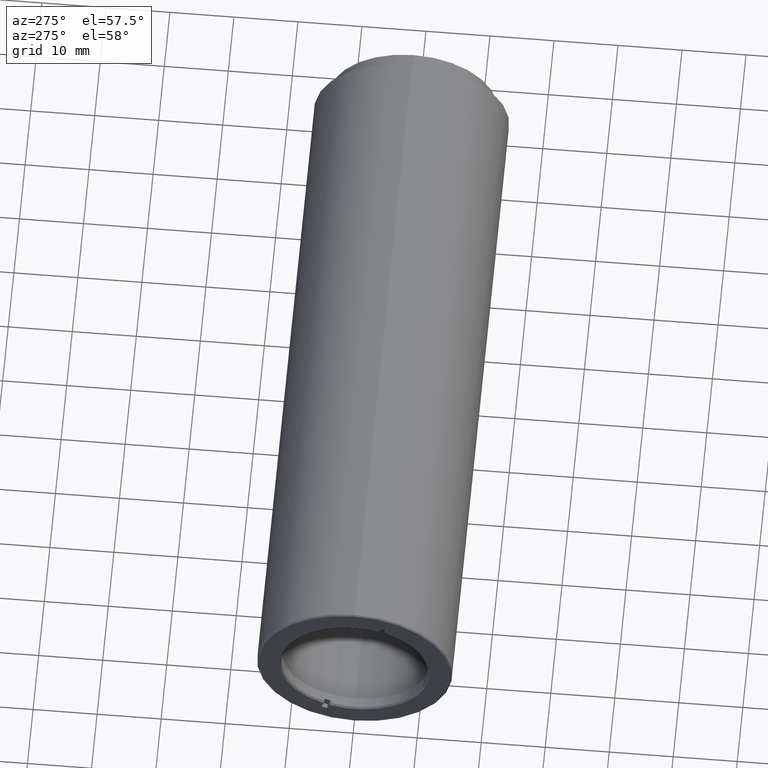
[diagram: clean part render]
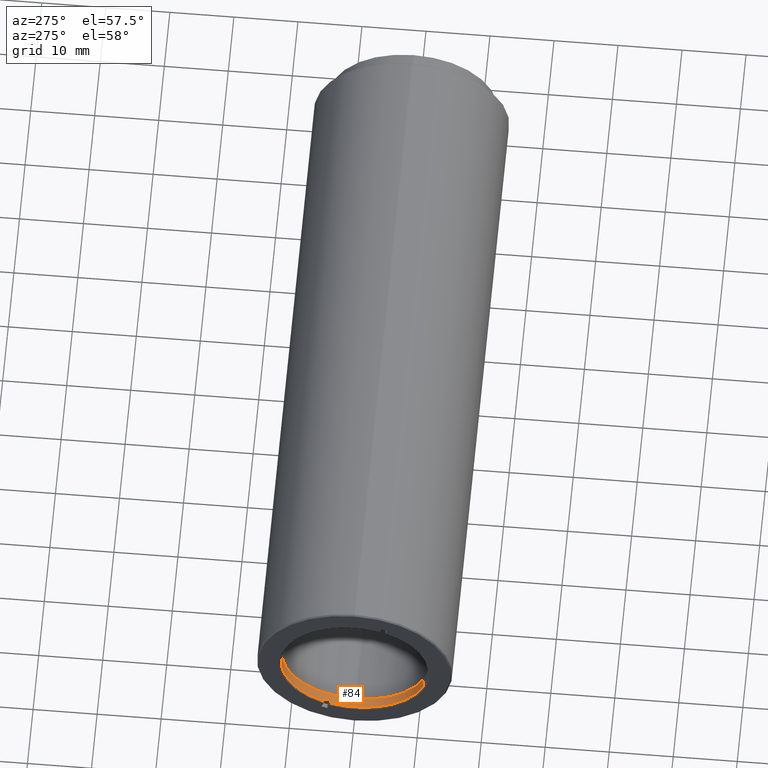
[diagram: same view with one face highlighted and labeled with its STEP entity id]
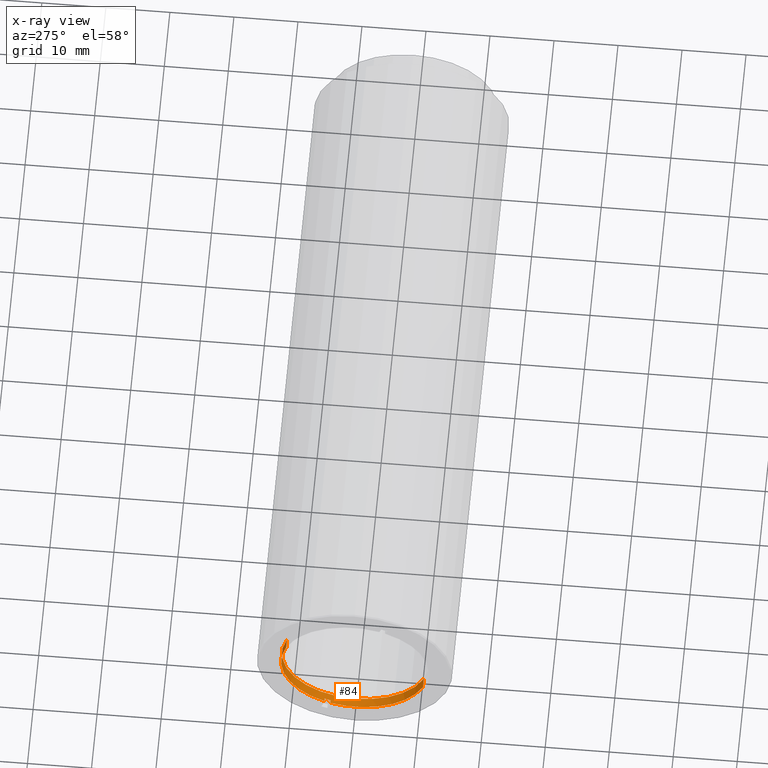
[diagram: x-ray of the same camera — body ghosted, the highlighted face saturated]
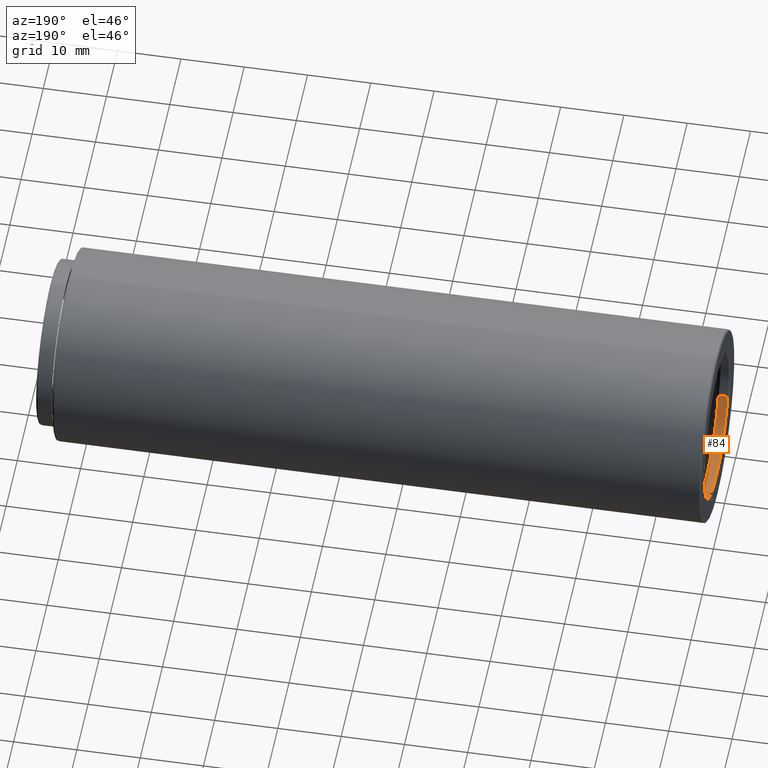
[diagram: same view with one face highlighted and labeled with its STEP entity id]
A machine part, auxiliary view. The second image highlights one B-rep face of the part: STEP entity #84.
The next image is the same camera in x-ray: the body ghosted, the highlighted face saturated — about 0% of this face is hidden behind the body in this view.
A second angle (auxiliary view) of the same face is appended — the face is thin or edge-on in the first view.
In plain terms, the highlighted cylindrical surface (partial cylindrical patch) has radius 11.5045 mm, axis along (1, 0, 0).
Its self-contained STEP definition (entity closure, byte-faithful):
#17 = DIRECTION ( 'NONE',  ( -1.000000000000000000, -2.105809034732734607E-31, -4.356099237842320700E-33 ) ) ;
#26 = CIRCLE ( 'NONE', #1256, 11.50449999999998951 ) ;
#43 = CARTESIAN_POINT ( 'NONE',  ( -98.62400000000003786, -20.10857142857141966, -8.673617379884032514E-16 ) ) ;
#75 = CARTESIAN_POINT ( 'NONE',  ( -97.12400000000002365, -20.10857142857141966, -8.673617379884035472E-16 ) ) ;
#84 = ADVANCED_FACE ( 'NONE', ( #687 ), #400, .F. ) ;
#139 = ORIENTED_EDGE ( 'NONE', *, *, #1115, .T. ) ;
#148 = CARTESIAN_POINT ( 'NONE',  ( -98.62400000000003786, -9.422420067448795677, 4.261418700054834474 ) ) ;
#151 = AXIS2_PLACEMENT_3D ( 'NONE', #75, #555, #820 ) ;
#189 = CARTESIAN_POINT ( 'NONE',  ( -98.62400000000003786, -16.31561282815149738, -10.86126076040439514 ) ) ;
#201 = CIRCLE ( 'NONE', #609, 11.50449999999998951 ) ;
#226 = AXIS2_PLACEMENT_3D ( 'NONE', #510, #994, #622 ) ;
#266 = CARTESIAN_POINT ( 'NONE',  ( -98.17400000000002080, -16.31561282815149738, -10.86126076040439514 ) ) ;
#292 = ORIENTED_EDGE ( 'NONE', *, *, #503, .F. ) ;
#301 = DIRECTION ( 'NONE',  ( -1.000000000000000000, -2.105809034732734607E-31, -4.356099237842320700E-33 ) ) ;
#313 = CARTESIAN_POINT ( 'NONE',  ( -97.12400000000002365, -9.422420067448802783, 4.261418700054831810 ) ) ;
#321 = EDGE_CURVE ( 'NONE', #629, #1159, #26, .T. ) ;
#338 = DIRECTION ( 'NONE',  ( 1.000000000000000000, 2.105809034732734607E-31, 4.356099237842320700E-33 ) ) ;
#362 = ORIENTED_EDGE ( 'NONE', *, *, #647, .T. ) ;
#375 = LINE ( 'NONE', #385, #498 ) ;
#385 = CARTESIAN_POINT ( 'NONE',  ( -98.87400000000002365, -16.31561282815149738, -10.86126076040439514 ) ) ;
#391 = LINE ( 'NONE', #457, #433 ) ;
#400 = CYLINDRICAL_SURFACE ( 'NONE', #226, 11.50449999999998951 ) ;
#433 = VECTOR ( 'NONE', #338, 1000.000000000000000 ) ;
#457 = CARTESIAN_POINT ( 'NONE',  ( -98.87400000000002365, -30.79472278969403476, -4.261418700054831810 ) ) ;
#485 = VERTEX_POINT ( 'NONE', #266 ) ;
#498 = VECTOR ( 'NONE', #548, 1000.000000000000000 ) ;
#502 = ORIENTED_EDGE ( 'NONE', *, *, #321, .T. ) ;
#503 = EDGE_CURVE ( 'NONE', #1576, #956, #703, .T. ) ;
#510 = CARTESIAN_POINT ( 'NONE',  ( -98.87400000000002365, -20.10857142857141966, -8.673617379884035472E-16 ) ) ;
#548 = DIRECTION ( 'NONE',  ( 1.000000000000000000, 2.105809034732734607E-31, 4.356099237842320700E-33 ) ) ;
#555 = DIRECTION ( 'NONE',  ( 1.000000000000000000, 2.105809034732734607E-31, 4.356099237842320700E-33 ) ) ;
#564 = LINE ( 'NONE', #1267, #738 ) ;
#566 = EDGE_CURVE ( 'NONE', #629, #485, #375, .T. ) ;
#584 = AXIS2_PLACEMENT_3D ( 'NONE', #1373, #637, #1485 ) ;
#591 = ORIENTED_EDGE ( 'NONE', *, *, #1091, .F. ) ;
#603 = VECTOR ( 'NONE', #17, 1000.000000000000000 ) ;
#609 = AXIS2_PLACEMENT_3D ( 'NONE', #43, #301, #1511 ) ;
#622 = DIRECTION ( 'NONE',  ( 0.000000000000000000, 0.9288670834128059939, 0.3704132035338204010 ) ) ;
#629 = VERTEX_POINT ( 'NONE', #189 ) ;
#637 = DIRECTION ( 'NONE',  ( -1.000000000000000000, -2.105809034732734607E-31, -4.356099237842320700E-33 ) ) ;
#647 = EDGE_CURVE ( 'NONE', #1133, #709, #1331, .T. ) ;
#687 = FACE_OUTER_BOUND ( 'NONE', #1057, .T. ) ;
#703 = LINE ( 'NONE', #753, #603 ) ;
#709 = VERTEX_POINT ( 'NONE', #313 ) ;
#727 = ORIENTED_EDGE ( 'NONE', *, *, #1043, .T. ) ;
#738 = VECTOR ( 'NONE', #783, 1000.000000000000000 ) ;
#739 = CARTESIAN_POINT ( 'NONE',  ( -98.62400000000003786, -15.38674574473869683, -10.49084755687057502 ) ) ;
#753 = CARTESIAN_POINT ( 'NONE',  ( -98.87400000000002365, -15.38674574473869683, -10.49084755687057502 ) ) ;
#783 = DIRECTION ( 'NONE',  ( 1.000000000000000000, 2.105809034732734607E-31, 4.356099237842320700E-33 ) ) ;
#820 = DIRECTION ( 'NONE',  ( 0.000000000000000000, -0.9288670834128058829, -0.3704132035338204010 ) ) ;
#824 = EDGE_CURVE ( 'NONE', #1159, #1133, #391, .T. ) ;
#956 = VERTEX_POINT ( 'NONE', #739 ) ;
#994 = DIRECTION ( 'NONE',  ( 1.000000000000000000, 2.105809034732734607E-31, 4.356099237842320700E-33 ) ) ;
#1039 = VERTEX_POINT ( 'NONE', #148 ) ;
#1043 = EDGE_CURVE ( 'NONE', #1576, #485, #1296, .T. ) ;
#1057 = EDGE_LOOP ( 'NONE', ( #502, #1380, #362, #591, #139, #292, #727, #1561 ) ) ;
#1091 = EDGE_CURVE ( 'NONE', #1039, #709, #564, .T. ) ;
#1115 = EDGE_CURVE ( 'NONE', #1039, #956, #201, .T. ) ;
#1133 = VERTEX_POINT ( 'NONE', #1505 ) ;
#1159 = VERTEX_POINT ( 'NONE', #1287 ) ;
#1233 = DIRECTION ( 'NONE',  ( -1.000000000000000000, -2.105809034732734607E-31, -4.356099237842320700E-33 ) ) ;
#1256 = AXIS2_PLACEMENT_3D ( 'NONE', #1565, #1233, #1443 ) ;
#1267 = CARTESIAN_POINT ( 'NONE',  ( -98.87400000000002365, -9.422420067448802783, 4.261418700054831810 ) ) ;
#1287 = CARTESIAN_POINT ( 'NONE',  ( -98.62400000000003786, -30.79472278969403476, -4.261418700054833586 ) ) ;
#1296 = CIRCLE ( 'NONE', #584, 11.50449999999998951 ) ;
#1331 = CIRCLE ( 'NONE', #151, 11.50449999999998951 ) ;
#1373 = CARTESIAN_POINT ( 'NONE',  ( -98.17400000000002080, -20.10857142857141966, -8.673617379884028570E-16 ) ) ;
#1380 = ORIENTED_EDGE ( 'NONE', *, *, #824, .T. ) ;
#1443 = DIRECTION ( 'NONE',  ( 0.000000000000000000, -0.9288670834128058829, -0.3704132035338204010 ) ) ;
#1485 = DIRECTION ( 'NONE',  ( 0.000000000000000000, -0.9288670834128058829, -0.3704132035338204010 ) ) ;
#1505 = CARTESIAN_POINT ( 'NONE',  ( -97.12400000000002365, -30.79472278969403831, -4.261418700054831810 ) ) ;
#1511 = DIRECTION ( 'NONE',  ( 0.000000000000000000, -0.9288670834128058829, -0.3704132035338204010 ) ) ;
#1513 = CARTESIAN_POINT ( 'NONE',  ( -98.17400000000002080, -15.38674574473869683, -10.49084755687057502 ) ) ;
#1561 = ORIENTED_EDGE ( 'NONE', *, *, #566, .F. ) ;
#1565 = CARTESIAN_POINT ( 'NONE',  ( -98.62400000000003786, -20.10857142857141966, -8.673617379884032514E-16 ) ) ;
#1576 = VERTEX_POINT ( 'NONE', #1513 ) ;